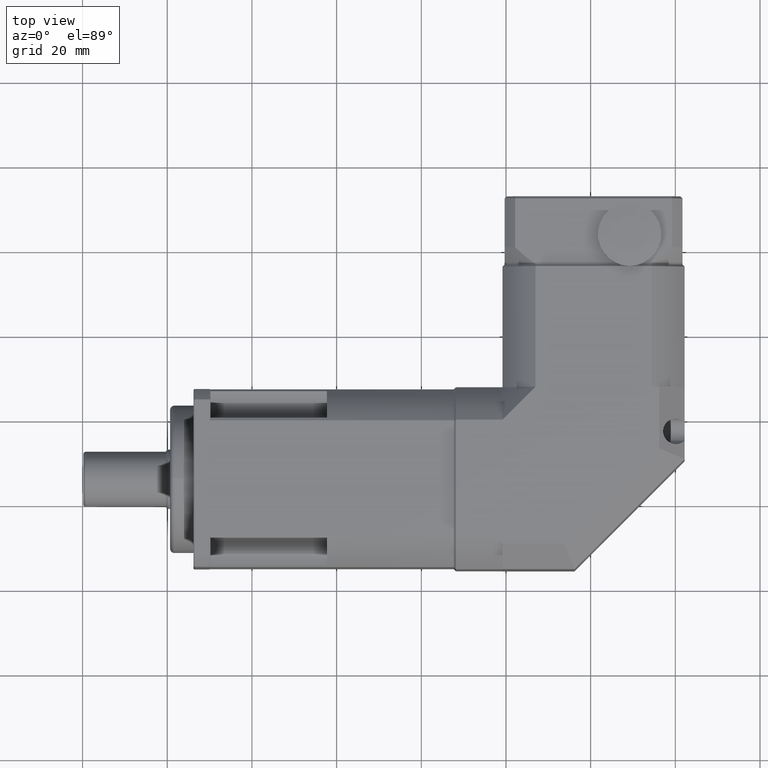
[diagram: clean part render]
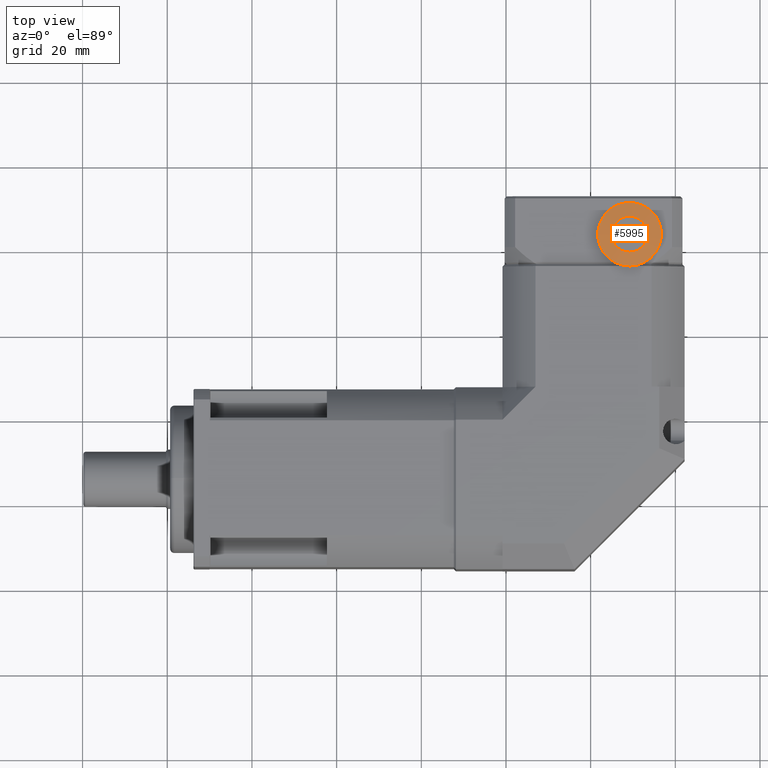
[diagram: same view with one face highlighted and labeled with its STEP entity id]
A machine part, top view. The second image highlights one B-rep face of the part: STEP entity #5995.
In plain terms, the highlighted conical surface has half-angle 84.726 deg.
Its self-contained STEP definition (entity closure, byte-faithful):
#853=CONICAL_SURFACE('',#6545,5.875,84.7261040426483);
#974=FACE_BOUND('',#1823,.T.);
#1336=FACE_OUTER_BOUND('',#1822,.T.);
#1822=EDGE_LOOP('',(#4343));
#1823=EDGE_LOOP('',(#4344));
#2292=CIRCLE('',#6542,7.5);
#2293=CIRCLE('',#6544,4.25);
#2697=VERTEX_POINT('',#9591);
#2698=VERTEX_POINT('',#9594);
#3311=EDGE_CURVE('',#2697,#2697,#2292,.T.);
#3312=EDGE_CURVE('',#2698,#2698,#2293,.T.);
#4343=ORIENTED_EDGE('',*,*,#3312,.T.);
#4344=ORIENTED_EDGE('',*,*,#3311,.F.);
#5995=ADVANCED_FACE('',(#1336,#974),#853,.T.);
#6542=AXIS2_PLACEMENT_3D('',#9592,#7658,#7659);
#6544=AXIS2_PLACEMENT_3D('',#9595,#7662,#7663);
#6545=AXIS2_PLACEMENT_3D('',#9596,#7664,#7665);
#7658=DIRECTION('center_axis',(1.03559198887465E-13,2.30086309546018E-15,
-1.));
#7659=DIRECTION('ref_axis',(-1.,-2.47836968369941E-15,-1.03559198887465E-13));
#7662=DIRECTION('center_axis',(1.03559198887465E-13,2.30086309546018E-15,
-1.));
#7663=DIRECTION('ref_axis',(-1.,-2.47836968369941E-15,-1.03559198887465E-13));
#7664=DIRECTION('center_axis',(1.03559198887465E-13,2.30086309546018E-15,
-1.));
#7665=DIRECTION('ref_axis',(-2.47836968369965E-15,1.,2.30593489484515E-15));
#9591=CARTESIAN_POINT('',(69.1917864952712,71.0526784650897,17.6286399548535));
#9592=CARTESIAN_POINT('Origin',(69.1917864952712,63.5526784650897,17.6286399548535));
#9594=CARTESIAN_POINT('',(69.1917864952711,67.8026784650897,17.9286399548535));
#9595=CARTESIAN_POINT('Origin',(69.1917864952712,63.5526784650897,17.9286399548535));
#9596=CARTESIAN_POINT('Origin',(69.1917864952712,63.5526784650897,17.7786399548535));